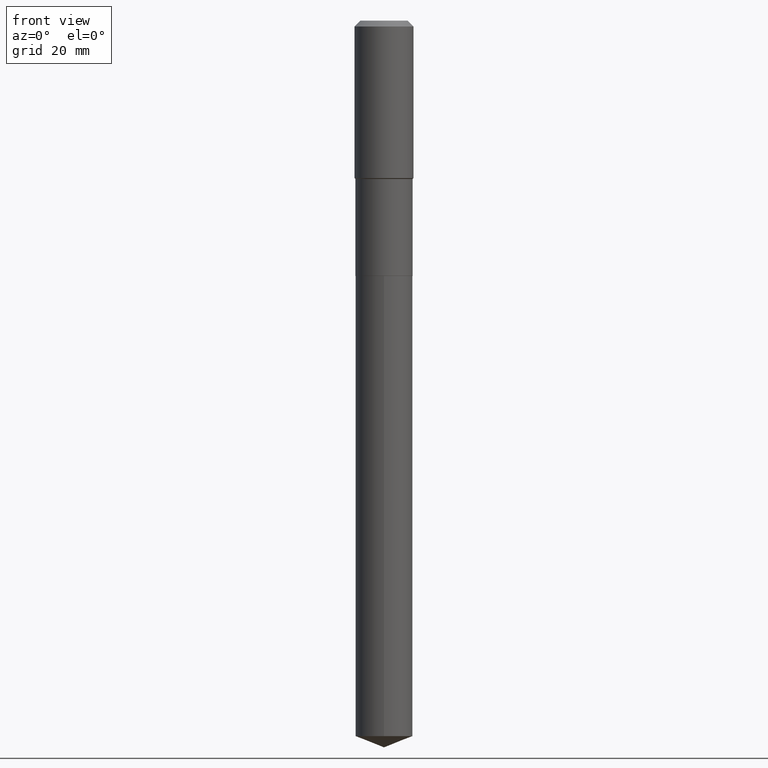
[diagram: clean part render]
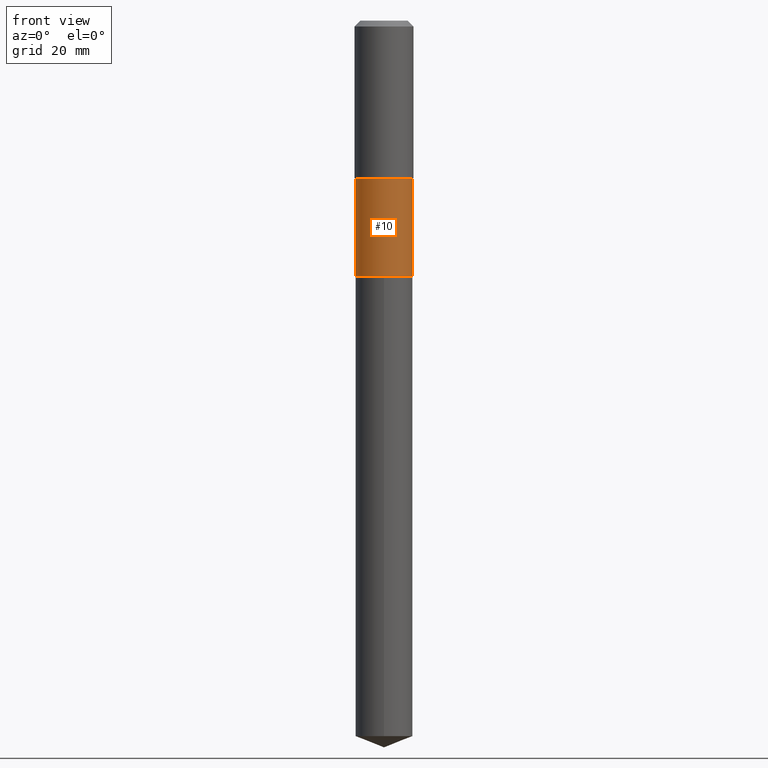
[diagram: same view with one face highlighted and labeled with its STEP entity id]
A machine part, front view. The second image highlights one B-rep face of the part: STEP entity #10.
In plain terms, the highlighted cylindrical surface (edge-blend (fillet) strip) has radius 8.7312 mm, axis along (-0, 0, 1).
Its self-contained STEP definition (entity closure, byte-faithful):
#1 = DIRECTION ( 'NONE',  ( 1.000000000000000000, -6.982962677686263555E-15, 0.000000000000000000 ) ) ;
#7 = LINE ( 'NONE', #128, #365 ) ;
#10 = ADVANCED_FACE ( 'NONE', ( #489 ), #35, .T. ) ;
#21 = ORIENTED_EDGE ( 'NONE', *, *, #27, .F. ) ;
#25 = VERTEX_POINT ( 'NONE', #179 ) ;
#27 = EDGE_CURVE ( 'NONE', #94, #357, #129, .T. ) ;
#35 = CYLINDRICAL_SURFACE ( 'NONE', #70, 0.3437499999999999445 ) ;
#42 = EDGE_CURVE ( 'NONE', #25, #207, #184, .T. ) ;
#55 = CARTESIAN_POINT ( 'NONE',  ( 0.3437499999999999445, -2.400393420454653787E-15, 1.676185766679852578E-29 ) ) ;
#67 = DIRECTION ( 'NONE',  ( 1.000000000000000000, -6.982962677686266711E-15, 0.000000000000000000 ) ) ;
#70 = AXIS2_PLACEMENT_3D ( 'NONE', #76, #297, #149 ) ;
#76 = CARTESIAN_POINT ( 'NONE',  ( 0.000000000000000000, 0.000000000000000000, 0.000000000000000000 ) ) ;
#78 = AXIS2_PLACEMENT_3D ( 'NONE', #151, #378, #1 ) ;
#94 = VERTEX_POINT ( 'NONE', #148 ) ;
#128 = CARTESIAN_POINT ( 'NONE',  ( -0.3437499999999999445, 2.442490654175343995E-15, -1.690883937275123355E-29 ) ) ;
#129 = CIRCLE ( 'NONE', #339, 0.3437499999999998335 ) ;
#148 = CARTESIAN_POINT ( 'NONE',  ( -0.3437499999999998335, -6.242569176196982176E-15, -1.904700000000000060 ) ) ;
#149 = DIRECTION ( 'NONE',  ( 1.000000000000000000, -6.982962677686266711E-15, 4.876176775795935793E-29 ) ) ;
#151 = CARTESIAN_POINT ( 'NONE',  ( 7.508322875630224719E-29, -1.071989515465011001E-14, -3.070300000000000473 ) ) ;
#169 = DIRECTION ( 'NONE',  ( -2.445468806185136877E-29, 3.491481338843145188E-15, 1.000000000000000000 ) ) ;
#179 = CARTESIAN_POINT ( 'NONE',  ( -0.3437500000000000000, -6.242569176196980598E-15, -3.070300000000000473 ) ) ;
#184 = CIRCLE ( 'NONE', #78, 0.3437500000000000000 ) ;
#193 = VECTOR ( 'NONE', #169, 39.37007874015748143 ) ;
#207 = VERTEX_POINT ( 'NONE', #265 ) ;
#248 = CARTESIAN_POINT ( 'NONE',  ( 0.3437499999999998335, -9.050617926549193356E-15, -1.904700000000000060 ) ) ;
#252 = EDGE_CURVE ( 'NONE', #25, #94, #7, .T. ) ;
#265 = CARTESIAN_POINT ( 'NONE',  ( 0.3437500000000000000, -1.312028857510476340E-14, -3.070300000000000473 ) ) ;
#274 = EDGE_LOOP ( 'NONE', ( #389, #368, #289, #21 ) ) ;
#289 = ORIENTED_EDGE ( 'NONE', *, *, #374, .T. ) ;
#297 = DIRECTION ( 'NONE',  ( -2.445468806185136597E-29, 3.491481338843145583E-15, 1.000000000000000000 ) ) ;
#334 = CARTESIAN_POINT ( 'NONE',  ( 4.657884435140829401E-29, -6.650224506094539963E-15, -1.904700000000000060 ) ) ;
#339 = AXIS2_PLACEMENT_3D ( 'NONE', #334, #454, #67 ) ;
#357 = VERTEX_POINT ( 'NONE', #248 ) ;
#365 = VECTOR ( 'NONE', #381, 39.37007874015748143 ) ;
#368 = ORIENTED_EDGE ( 'NONE', *, *, #42, .T. ) ;
#374 = EDGE_CURVE ( 'NONE', #207, #357, #395, .T. ) ;
#378 = DIRECTION ( 'NONE',  ( -2.445468806185136597E-29, 3.491481338843145583E-15, 1.000000000000000000 ) ) ;
#381 = DIRECTION ( 'NONE',  ( -2.445468806185136877E-29, 3.491481338843145188E-15, 1.000000000000000000 ) ) ;
#389 = ORIENTED_EDGE ( 'NONE', *, *, #252, .F. ) ;
#395 = LINE ( 'NONE', #55, #193 ) ;
#454 = DIRECTION ( 'NONE',  ( -2.445468806185136597E-29, 3.491481338843145583E-15, 1.000000000000000000 ) ) ;
#489 = FACE_OUTER_BOUND ( 'NONE', #274, .T. ) ;